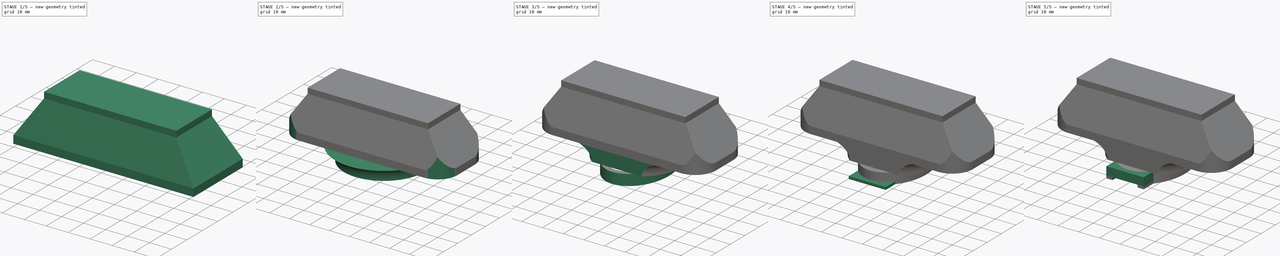
[diagram: build sequence overview — one tinted view per stage of 5, left to right]
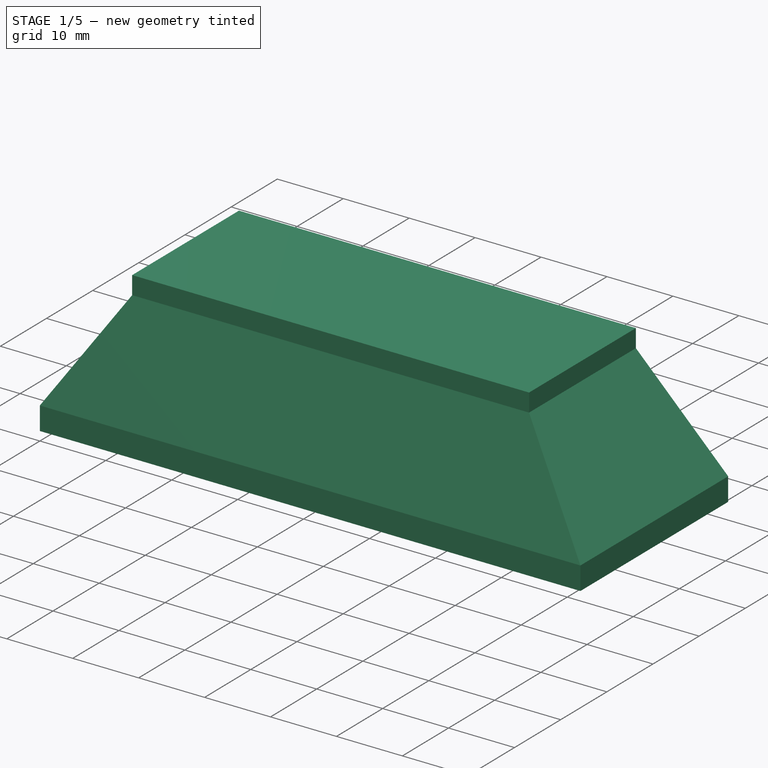
[diagram: stage 1 of 5 — iso view after this stage's code; geometry added in this stage tinted green]
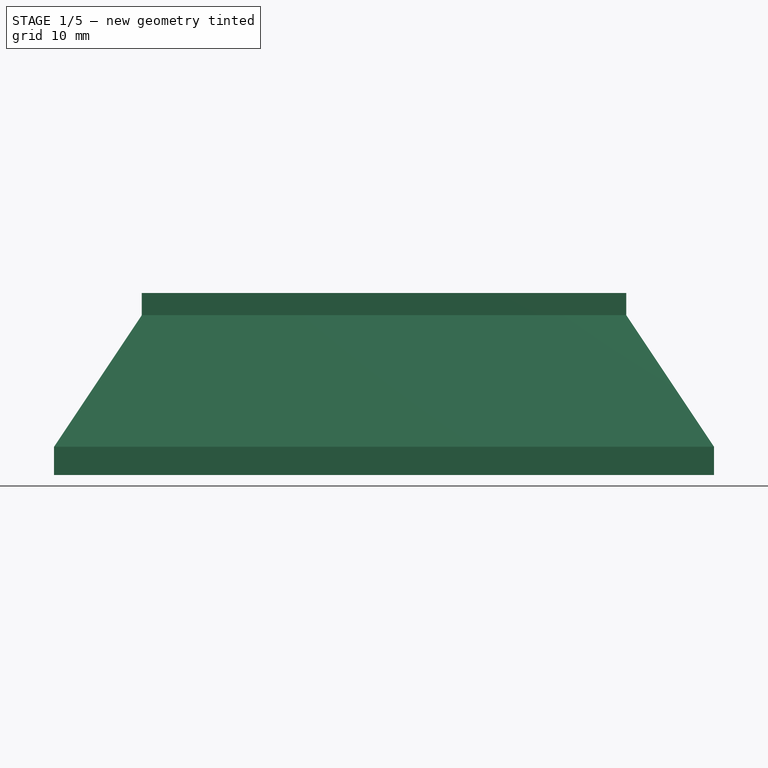
[diagram: stage 1 of 5 — front view after this stage's code; geometry added in this stage tinted green]
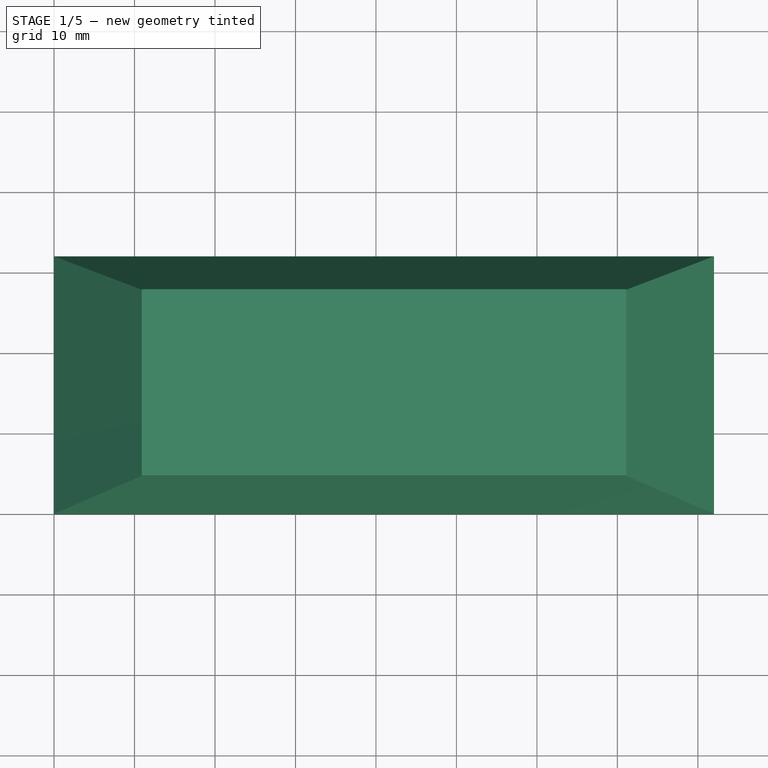
[diagram: stage 1 of 5 — top view after this stage's code; geometry added in this stage tinted green]
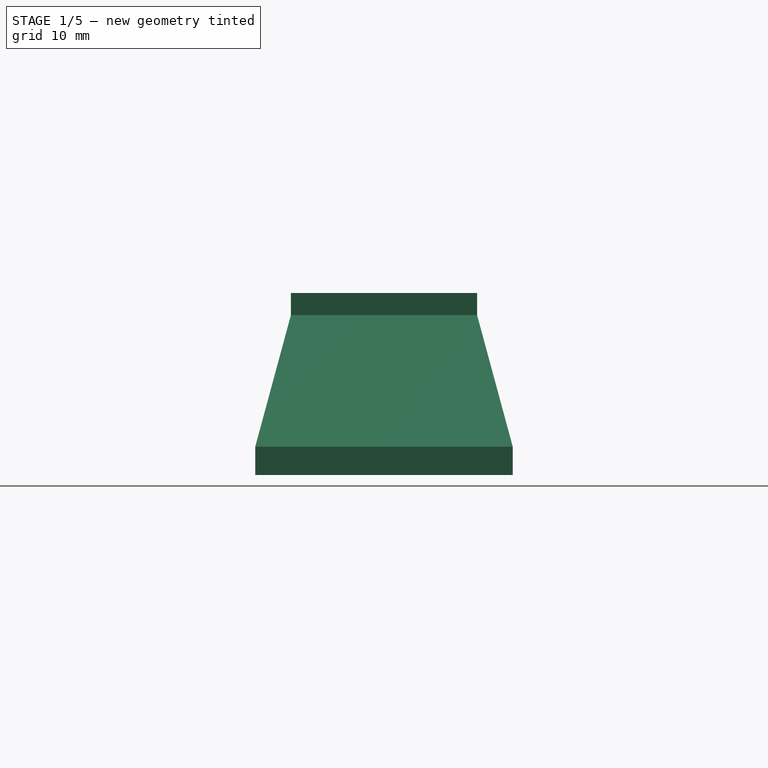
[diagram: stage 1 of 5 — right view after this stage's code; geometry added in this stage tinted green]
FCSTD DOCUMENT  (FreeCAD 0.20R29410 (Git))
Label: Projeto_HS
License: All rights reserved
LicenseURL: http://en.wikipedia.org/wiki/All_rights_reserved
objects: Sketcher::SketchObject×15, PartDesign::Pocket×8, PartDesign::Pad×7, PartDesign::Fillet×1, PartDesign::Revolution×1, PartDesign::Chamfer×1, PartDesign::Body×1
note: 52 computed .brp shape members not serialized (recipe doc carries the construction recipe); baked Part::Feature solids carry a one-line shape summary decoded from their .brp

FEATURE [Sketcher::SketchObject] Sketch
  FullyConstrained = true
  MapMode = 5
  Support = -> [XY_Plane]
  sketch-geometry (4):
    g0: LineSegment StartX=0 StartY=0 StartZ=0 EndX=82 EndY=0 EndZ=0
    g1: LineSegment StartX=82 StartY=0 StartZ=0 EndX=82 EndY=32 EndZ=0
    g2: LineSegment StartX=82 StartY=32 StartZ=0 EndX=0 EndY=32 EndZ=0
    g3: LineSegment StartX=0 StartY=32 StartZ=0 EndX=0 EndY=0 EndZ=0
  constraints (11):
    c: Coincident(g0,g1)
    c: Coincident(g1,g2)
    c: Coincident(g2,g3)
    c: Coincident(g3,g0)
    c: Horizontal(g0)
    c: Horizontal(g2)
    c: Vertical(g1)
    c: Vertical(g3)
    c: Coincident(g0,g-1)
    c: DistanceY(g0,g2) = 32
    c: DistanceX(g2,g1) = 82
FEATURE [PartDesign::Pad] Pad
  Direction = (0,0,1)
  Length = 19.85
  Length2 = 10
  Profile = -> Sketch
  ReferenceAxis = -> Sketch [N_Axis]
  Type = 0
FEATURE [Sketcher::SketchObject] Sketch001
  FullyConstrained = false
  MapMode = 5
  Placement = pos=(0,0,19.85) rot=(0,0,1;0rad)
  Support = -> [Pad]
  sketch-geometry (4):
    g0: LineSegment StartX=10.9045 StartY=4.43 StartZ=0 EndX=71.1045 EndY=4.43 EndZ=0
    g1: LineSegment StartX=71.1045 StartY=4.43 StartZ=0 EndX=71.1045 EndY=27.57 EndZ=0
    g2: LineSegment StartX=71.1045 StartY=27.57 StartZ=0 EndX=10.9045 EndY=27.57 EndZ=0
    g3: LineSegment StartX=10.9045 StartY=27.57 StartZ=0 EndX=10.9045 EndY=4.43 EndZ=0
  constraints (11):
    c: Coincident(g0,g1)
    c: Coincident(g1,g2)
    c: Coincident(g2,g3)
    c: Coincident(g3,g0)
    c: Horizontal(g0)
    c: Horizontal(g2)
    c: Vertical(g1)
    c: Vertical(g3)
    c: DistanceX(g0,g0) = 60.2
    c: DistanceY(g0,g2) = 23.14
    c: Distance(g-1,g0) = 11.77
FEATURE [PartDesign::Pad] Pad001
  BaseFeature = -> Pad
  Direction = (0,0,1)
  Length = 2.75
  Length2 = 10
  Profile = -> Sketch001
  ReferenceAxis = -> Sketch001 [N_Axis]
  Type = 0
FEATURE [Sketcher::SketchObject] Sketch002
  FullyConstrained = false
  MapMode = 5
  Placement = pos=(82,0,0) rot=(0.57735,0.57735,0.57735;2.0944rad)
  Support = -> [Pad001]
  sketch-geometry (6):
    g0: LineSegment StartX=0 StartY=3.5 StartZ=0 EndX=0 EndY=19.85 EndZ=0
    g1: LineSegment StartX=0 StartY=19.85 StartZ=0 EndX=4.43 EndY=19.85 EndZ=0
    g2: LineSegment StartX=4.43 StartY=19.85 StartZ=0 EndX=0 EndY=3.5 EndZ=0
    g3: LineSegment StartX=32 StartY=3.5 StartZ=0 EndX=32 EndY=19.85 EndZ=0
    g4: LineSegment StartX=32 StartY=19.85 StartZ=0 EndX=27.57 EndY=19.85 EndZ=0
    g5: LineSegment StartX=27.57 StartY=19.85 StartZ=0 EndX=32 EndY=3.5 EndZ=0
  constraints (14):
    c: DistanceY(g-1,g2) = 3.5
    c: Vertical(g0)
    c: DistanceY(g2,g0) = 16.35
    c: Coincident(g1,g0)
    c: Horizontal(g1)
    c: DistanceX(g0,g1) = 4.43
    c: Coincident(g2,g1)
    c: Vertical(g3)
    c: DistanceY(g3,g3) = 16.35
    c: Coincident(g4,g3)
    c: Horizontal(g4)
    c: DistanceX(g4,g3) = 4.43
    c: Coincident(g5,g4)
    c: DistanceX(g1,g4) = 23.14
FEATURE [PartDesign::Pocket] Pocket
  BaseFeature = -> Pad001
  Direction = (-1,0,0)
  Length = 5
  Length2 = 5
  Profile = -> Sketch002
  ReferenceAxis = -> Sketch002 [N_Axis]
  Type = 1
FEATURE [Sketcher::SketchObject] Sketch003
  FullyConstrained = false
  MapMode = 5
  Placement = pos=(0,0,0) rot=(1,0,0;1.5708rad)
  Support = -> [XZ_Plane]
  sketch-geometry (6):
    g0: LineSegment StartX=0 StartY=3.5 StartZ=0 EndX=0 EndY=19.85 EndZ=0
    g1: LineSegment StartX=0 StartY=19.85 StartZ=0 EndX=10.9 EndY=19.85 EndZ=0
    g2: LineSegment StartX=10.9 StartY=19.85 StartZ=0 EndX=0 EndY=3.5 EndZ=0
    g3: LineSegment StartX=82 StartY=3.5 StartZ=0 EndX=82 EndY=19.85 EndZ=0
    g4: LineSegment StartX=82 StartY=19.85 StartZ=0 EndX=71.1 EndY=19.85 EndZ=0
    g5: LineSegment StartX=71.1 StartY=19.85 StartZ=0 EndX=82 EndY=3.5 EndZ=0
  constraints (11):
    c: Vertical(g0)
    c: Coincident(g1,g0)
    c: Horizontal(g1)
    c: DistanceX(g0,g1) = 10.9
    c: Coincident(g2,g1)
    c: Vertical(g3)
    c: DistanceY(g3,g3) = 16.35
    c: Coincident(g4,g3)
    c: Horizontal(g4)
    c: DistanceX(g4,g3) = 10.9
    c: Coincident(g5,g4)
FEATURE [PartDesign::Pocket] Pocket001
  BaseFeature = -> Pocket
  Direction = (0,1,-2e-16)
  Length = 5
  Length2 = 5
  Profile = -> Sketch003
  ReferenceAxis = -> Sketch003 [N_Axis]
  Type = 1
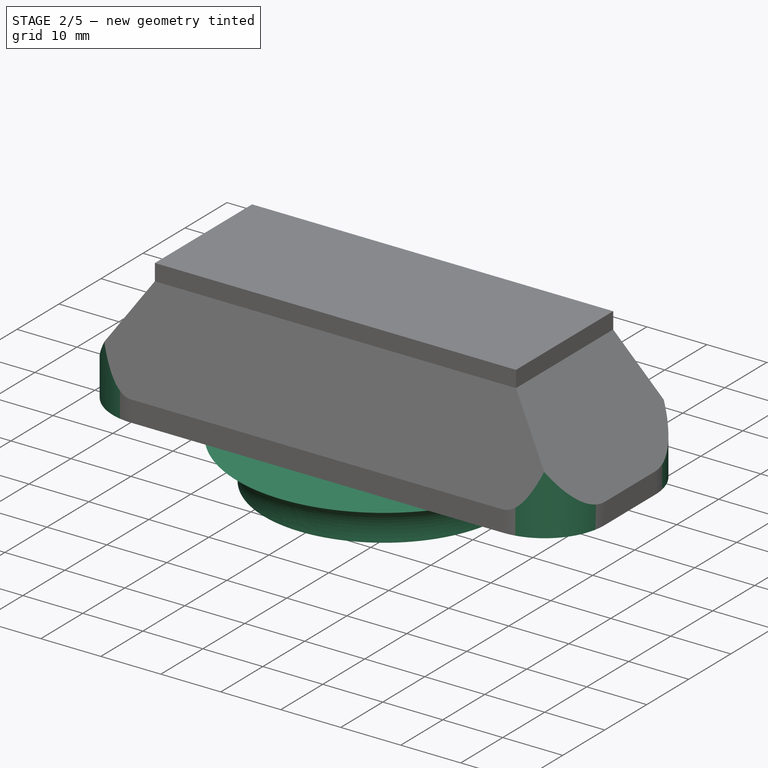
[diagram: stage 2 of 5 — iso view after this stage's code; geometry added in this stage tinted green]
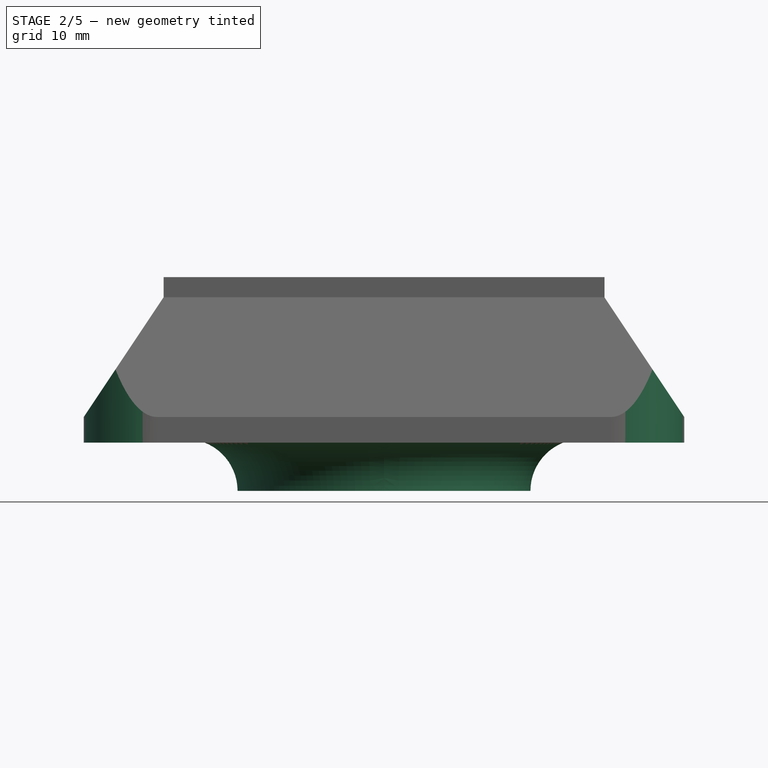
[diagram: stage 2 of 5 — front view after this stage's code; geometry added in this stage tinted green]
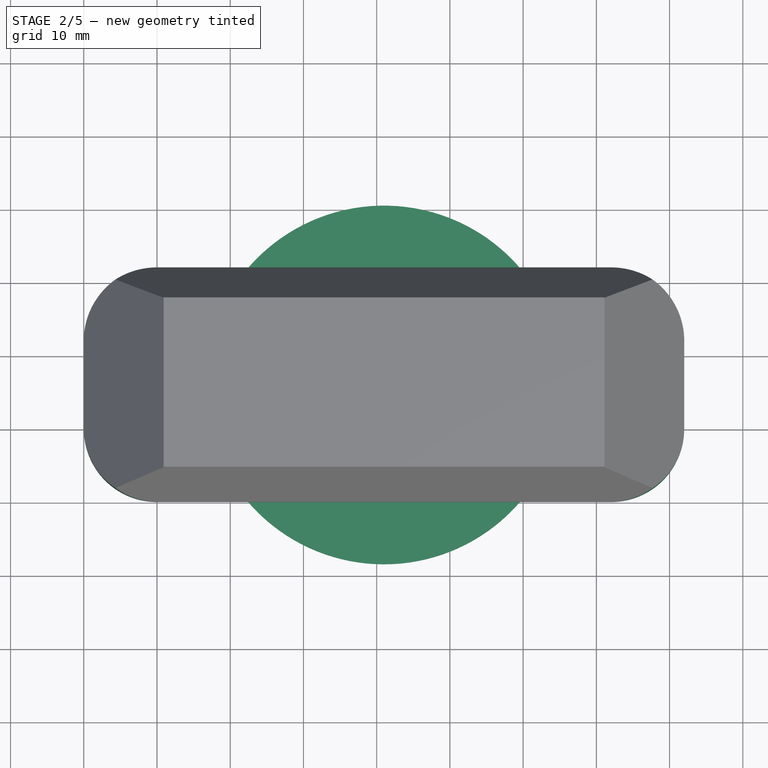
[diagram: stage 2 of 5 — top view after this stage's code; geometry added in this stage tinted green]
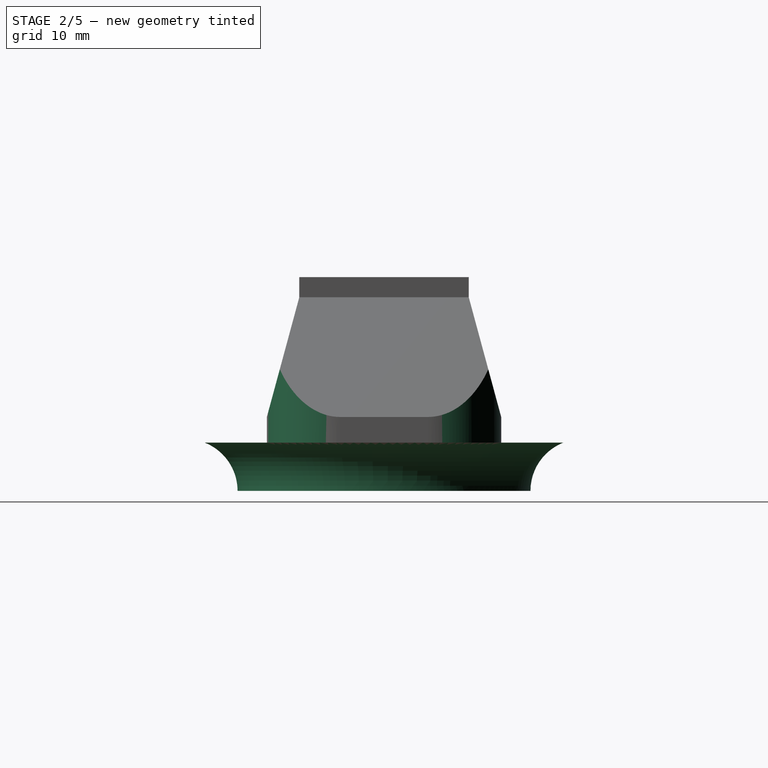
[diagram: stage 2 of 5 — right view after this stage's code; geometry added in this stage tinted green]
FEATURE [PartDesign::Fillet] Fillet
  Base = -> Pocket001 [Edge8,Edge2,Edge4,Edge15]
  BaseFeature = -> Pocket001
  Radius = 10
  SupportTransform = false
  UseAllEdges = false
FEATURE [Sketcher::SketchObject] Sketch006
  FullyConstrained = false
  MapMode = 5
  Placement = pos=(0,0,0) rot=(1,0,0;3.14159rad)
  Support = -> [Fillet]
  sketch-geometry (4):
    g0: LineSegment StartX=41 StartY=-16 StartZ=0 EndX=39.4965 EndY=-16 EndZ=0
    g1: LineSegment StartX=39.4965 StartY=-16 StartZ=0 EndX=39.4965 EndY=-14.4922 EndZ=0
    g2: LineSegment StartX=39.4965 StartY=-14.4922 StartZ=0 EndX=41 EndY=-14.4922 EndZ=0
    g3: LineSegment StartX=41 StartY=-14.4922 StartZ=0 EndX=41 EndY=-16 EndZ=0
  constraints (8):
    c: Coincident(g0,g1)
    c: Coincident(g1,g2)
    c: Coincident(g2,g3)
    c: Coincident(g3,g0)
    c: Horizontal(g0)
    c: Horizontal(g2)
    c: Vertical(g1)
    c: Vertical(g3)
FEATURE [PartDesign::Pad] Pad002
  BaseFeature = -> Fillet
  Direction = (0,0,-1)
  Length = 1
  Length2 = 10
  Profile = -> Sketch006
  ReferenceAxis = -> Sketch006 [N_Axis]
  Type = 0
FEATURE [Sketcher::SketchObject] Sketch007
  FullyConstrained = true
  MapMode = 5
  Placement = pos=(82,0,0) rot=(0.57735,0.57735,0.57735;2.0944rad)
  sketch-geometry (8):
    g0: LineSegment StartX=0 StartY=0 StartZ=0 EndX=-9.4 EndY=0 EndZ=0
    g1: LineSegment StartX=-9.4 StartY=0 StartZ=0 EndX=-9.4 EndY=-8 EndZ=0
    g2: LineSegment StartX=-9.4 StartY=-8 StartZ=0 EndX=0 EndY=-8 EndZ=0
    g3: LineSegment StartX=0 StartY=-8 StartZ=0 EndX=0 EndY=0 EndZ=0
    g4: LineSegment StartX=32 StartY=0 StartZ=0 EndX=41.4 EndY=0 EndZ=0
    g5: LineSegment StartX=41.4 StartY=0 StartZ=0 EndX=41.4 EndY=-8 EndZ=0
    g6: LineSegment StartX=41.4 StartY=-8 StartZ=0 EndX=32 EndY=-8 EndZ=0
    g7: LineSegment StartX=32 StartY=-8 StartZ=0 EndX=32 EndY=0 EndZ=0
  constraints (23):
    c: Coincident(g0,g1)
    c: Coincident(g1,g2)
    c: Coincident(g2,g3)
    c: Coincident(g3,g0)
    c: Horizontal(g0)
    c: Horizontal(g2)
    c: Vertical(g1)
    c: Vertical(g3)
    c: Coincident(g0,g-1)
    c: DistanceX(g0,g0) = 9.4
    c: DistanceY(g1,g0) = 8
    c: Coincident(g4,g5)
    c: Coincident(g5,g6)
    c: Coincident(g6,g7)
    c: Coincident(g7,g4)
    c: Horizontal(g4)
    c: Horizontal(g6)
    c: Vertical(g5)
    c: Vertical(g7)
    c: PointOnObject(g4,g-1)
    c: DistanceX(g4,g4) = 9.4
    c: DistanceX(g0,g4) = 32
    c: DistanceY(g6,g4) = 8
FEATURE [Sketcher::SketchObject] Sketch008
  FullyConstrained = true
  MapMode = 5
  Placement = pos=(41,0,0) rot=(0.57735,0.57735,0.57735;2.0944rad)
  sketch-geometry (4):
    g0: LineSegment StartX=16 StartY=-4.841e-13 StartZ=0 EndX=16 EndY=-6.6 EndZ=0
    g1: LineSegment StartX=16 StartY=-6.6 StartZ=0 EndX=-4 EndY=-6.6 EndZ=0
    g2: ArcOfCircle CenterX=-11.09 CenterY=-6.6 CenterZ=0 NormalX=0 NormalY=0 NormalZ=1 AngleXU=0 Radius=7.09 StartAngle=-1.8e-15 EndAngle=1.19684
    g3: LineSegment StartX=-8.5 StartY=-4.841e-13 StartZ=0 EndX=16 EndY=-4.841e-13 EndZ=0
  constraints (13):
    c: PointOnObject(g0,g-1)
    c: DistanceX(g-1,g0) = 16
    c: Vertical(g0)
    c: DistanceY(g0,g0) = 6.6
    c: Coincident(g1,g0)
    c: Horizontal(g1)
    c: DistanceX(g1,g0) = 20
    c: DistanceX(g2,g0) = 24.5
    c: Coincident(g2,g1)
    c: Horizontal(g2,g1)
    c: Coincident(g3,g2)
    c: Coincident(g3,g0)
    c: Horizontal(g3)
FEATURE [PartDesign::Revolution] Revolution
  Angle = 360
  Axis = (0,0,-1)
  Base = (41,16,0)
  BaseFeature = -> Pad002
  Profile = -> Sketch008
  ReferenceAxis = -> Pad002 [Edge37]
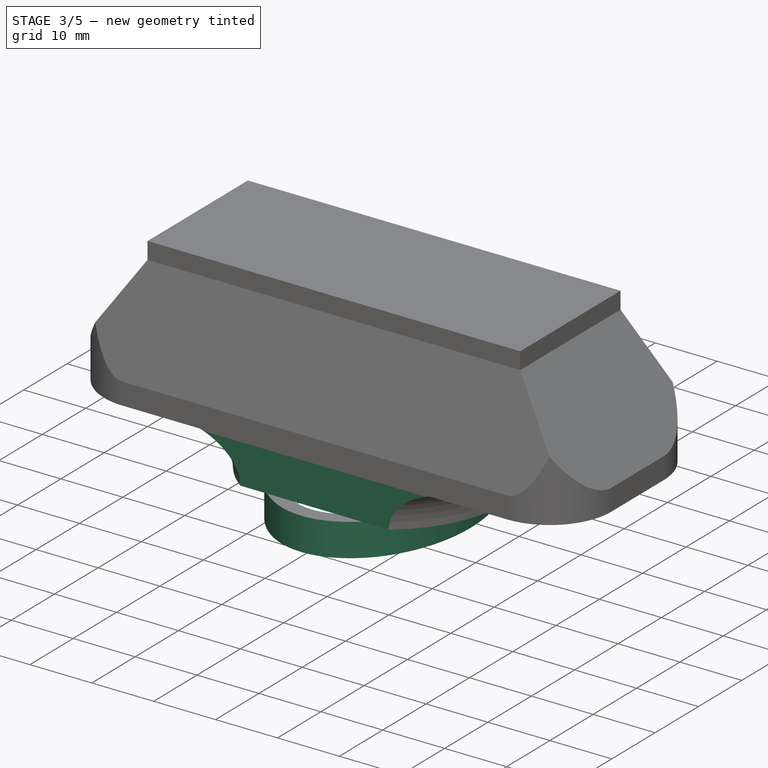
[diagram: stage 3 of 5 — iso view after this stage's code; geometry added in this stage tinted green]
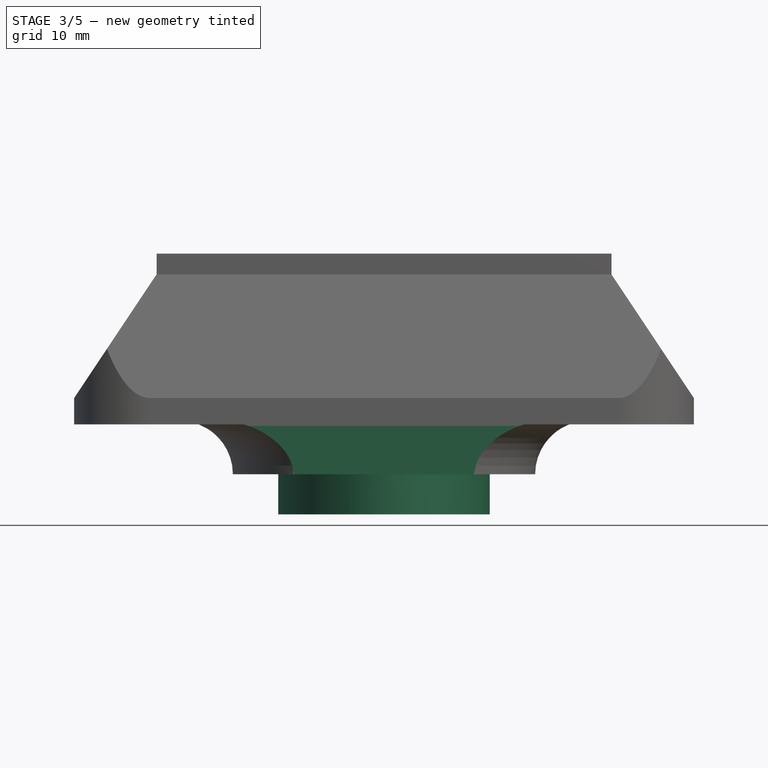
[diagram: stage 3 of 5 — front view after this stage's code; geometry added in this stage tinted green]
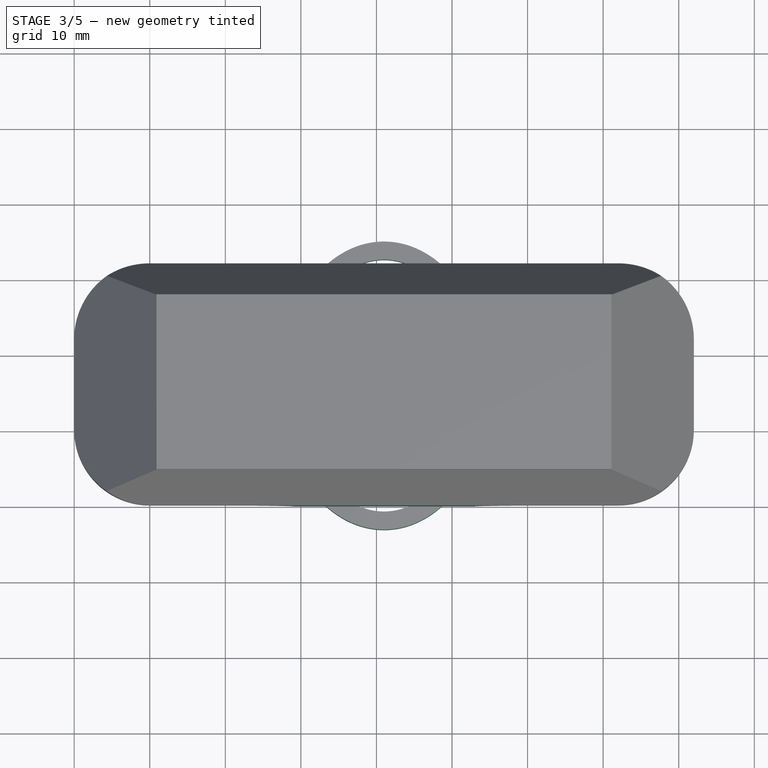
[diagram: stage 3 of 5 — top view after this stage's code; geometry added in this stage tinted green]
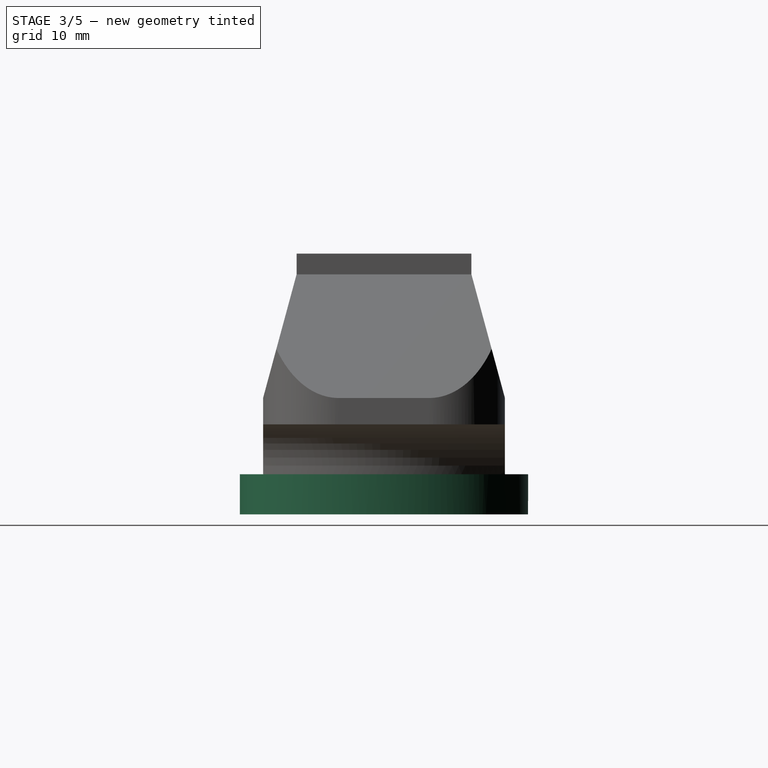
[diagram: stage 3 of 5 — right view after this stage's code; geometry added in this stage tinted green]
FEATURE [PartDesign::Pocket] Pocket002
  BaseFeature = -> Revolution
  Direction = (-1,0,0)
  Length = 5
  Length2 = 5
  Profile = -> Sketch007
  ReferenceAxis = -> Sketch007 [N_Axis]
  Type = 1
FEATURE [Sketcher::SketchObject] Sketch009
  FullyConstrained = true
  MapMode = 5
  Placement = pos=(0,0,-6.6) rot=(1,0,0;3.14159rad)
  Support = -> [Pocket002]
  sketch-geometry (2):
    g0: Circle CenterX=41 CenterY=-16 CenterZ=0 NormalX=0 NormalY=0 NormalZ=1 AngleXU=0 Radius=17.7
    g1: Circle CenterX=41 CenterY=-16 CenterZ=0 NormalX=0 NormalY=0 NormalZ=1 AngleXU=0 Radius=19.9
  constraints (5):
    c: Diameter(g0) = 35.4
    c: DistanceX(g0) = 41
    c: DistanceY(g0) = -16
    c: Coincident(g1,g0)
    c: Diameter(g1) = 39.8
FEATURE [PartDesign::Pocket] Pocket003
  BaseFeature = -> Pocket002
  Direction = (0,0,1)
  Length = 0.01
  Length2 = 5
  Profile = -> Sketch009
  ReferenceAxis = -> Sketch009 [N_Axis]
  Type = 0
FEATURE [Sketcher::SketchObject] Sketch010
  FullyConstrained = true
  MapMode = 5
  Placement = pos=(0,0,-6.6) rot=(1,0,0;3.14159rad)
  Support = -> [Pocket003]
  sketch-geometry (1):
    g0: Circle CenterX=41 CenterY=-16 CenterZ=0 NormalX=0 NormalY=0 NormalZ=1 AngleXU=0 Radius=9.5
  constraints (3):
    c: Diameter(g0) = 19
    c: DistanceX(g0) = 41
    c: DistanceY(g0) = -16
FEATURE [PartDesign::Pocket] Pocket004
  BaseFeature = -> Pocket003
  Direction = (0,0,1)
  Length = 1
  Length2 = 5
  Profile = -> Sketch010
  ReferenceAxis = -> Sketch010 [N_Axis]
  Type = 0
FEATURE [Sketcher::SketchObject] Sketch011
  FullyConstrained = true
  MapMode = 5
  Placement = pos=(0,0,-6.6) rot=(1,0,0;3.14159rad)
  Support = -> [Pocket004]
  sketch-geometry (10):
    g0: Ellipse CenterX=41 CenterY=-16 CenterZ=0 NormalX=0 NormalY=0 NormalZ=1 MajorRadius=19.065 MinorRadius=14 AngleXU=1.5708
    g1: LineSegment StartX=41 StartY=3.065 StartZ=0 EndX=41 EndY=-35.065 EndZ=0
    g2: LineSegment StartX=27 StartY=-16 StartZ=0 EndX=55 EndY=-16 EndZ=0
    g3: GeomPoint X=41 Y=-3.05882 Z=0
    g4: GeomPoint X=41 Y=-28.9412 Z=0
    g5: Ellipse CenterX=41 CenterY=-16 CenterZ=0 NormalX=0 NormalY=0 NormalZ=1 MajorRadius=16.665 MinorRadius=11.6 AngleXU=1.5708
    g6: LineSegment StartX=41 StartY=0.665 StartZ=0 EndX=41 EndY=-32.665 EndZ=0
    g7: LineSegment StartX=29.4 StartY=-16 StartZ=0 EndX=52.6 EndY=-16 EndZ=0
    g8: GeomPoint X=41 Y=-4.03496 Z=0
    g9: GeomPoint X=41 Y=-27.965 Z=0
  constraints (11):
    c: InternalAlignment(g1-g4 -> g0) x4
    c: DistanceX(g0) = 41
    c: DistanceY(g0) = -16
    c: Vertical(g1)
    c: DistanceX(g2,g2) = 28
    c: DistanceY(g1,g1) = 38.13
    c: InternalAlignment(g6-g9 -> g5) x4
    c: Coincident(g0,g5)
    c: Vertical(g6)
    c: DistanceY(g6,g1) = 2.4
    c: DistanceX(g2,g7) = 2.4
FEATURE [PartDesign::Pad] Pad003
  BaseFeature = -> Pocket004
  Direction = (0,0,-1)
  Length = 5.3
  Length2 = 10
  Profile = -> Sketch011
  ReferenceAxis = -> Sketch011 [N_Axis]
  Type = 0
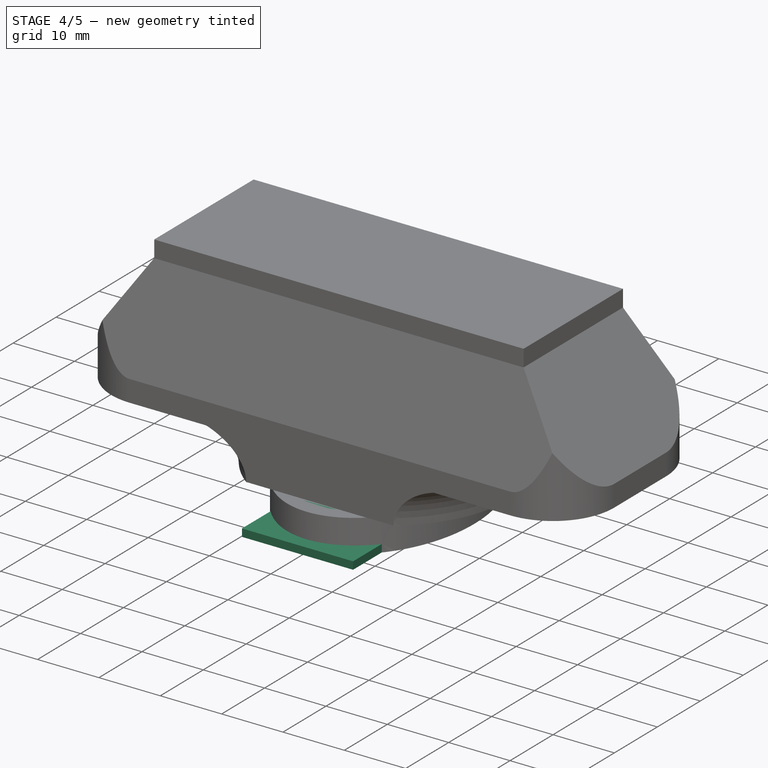
[diagram: stage 4 of 5 — iso view after this stage's code; geometry added in this stage tinted green]
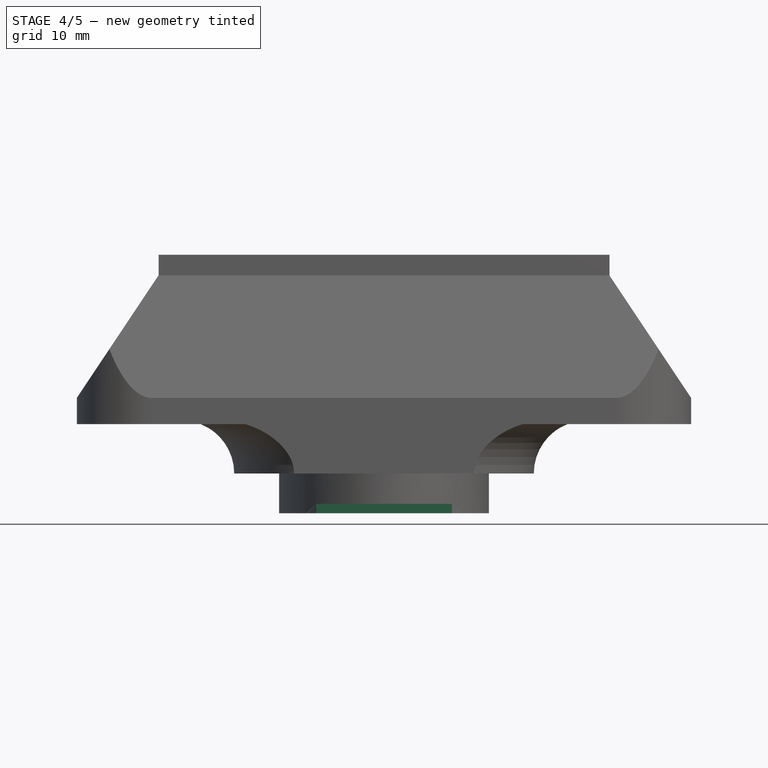
[diagram: stage 4 of 5 — front view after this stage's code; geometry added in this stage tinted green]
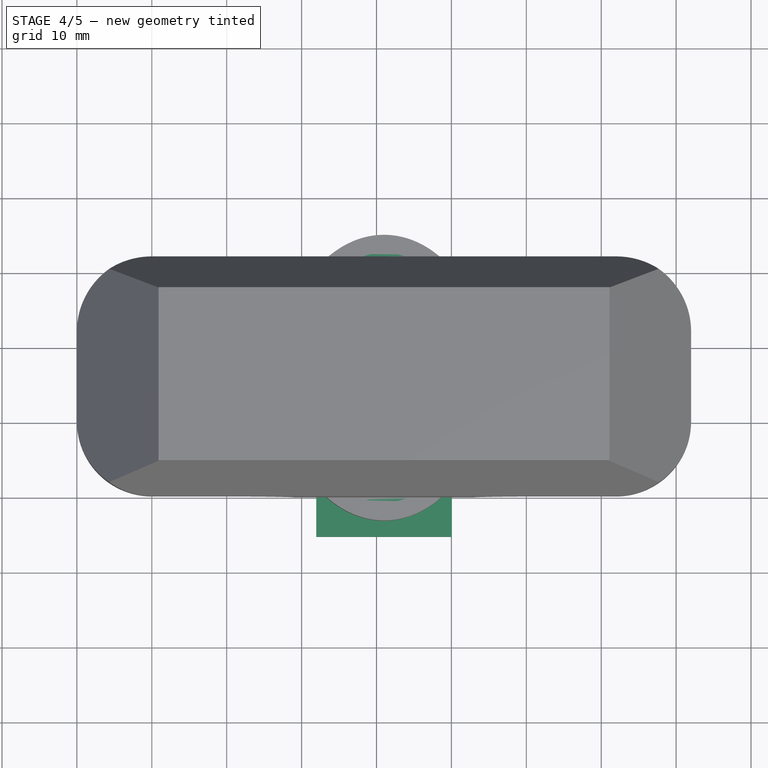
[diagram: stage 4 of 5 — top view after this stage's code; geometry added in this stage tinted green]
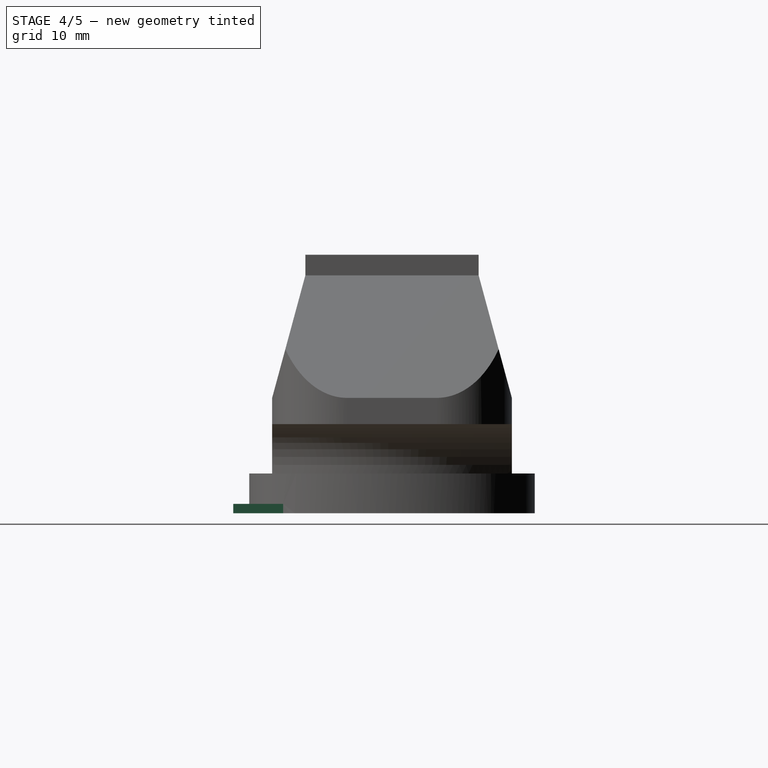
[diagram: stage 4 of 5 — right view after this stage's code; geometry added in this stage tinted green]
FEATURE [Sketcher::SketchObject] Sketch012
  FullyConstrained = true
  MapMode = 5
  Placement = pos=(0,0,-6.6) rot=(1,0,0;3.14159rad)
  Support = -> [Pad003]
  sketch-geometry (6):
    g0: Ellipse CenterX=41 CenterY=-16 CenterZ=0 NormalX=0 NormalY=0 NormalZ=1 MajorRadius=16.67 MinorRadius=11.61 AngleXU=1.5708
    g1: LineSegment StartX=41 StartY=0.67 StartZ=0 EndX=41 EndY=-32.67 EndZ=0
    g2: LineSegment StartX=29.39 StartY=-16 StartZ=0 EndX=52.61 EndY=-16 EndZ=0
    g3: GeomPoint X=41 Y=-4.03769 Z=0
    g4: GeomPoint X=41 Y=-27.9623 Z=0
    g5: Circle CenterX=41 CenterY=-16 CenterZ=0 NormalX=0 NormalY=0 NormalZ=1 AngleXU=0 Radius=9.55
  constraints (8):
    c: InternalAlignment(g1-g4 -> g0) x4
    c: DistanceX(g0) = 41
    c: DistanceY(g0) = -16
    c: Vertical(g1)
    c: DistanceY(g0,g1) = 16.67
    c: DistanceX(g2,g0) = 11.61
    c: Coincident(g5,g0)
    c: Diameter(g5) = 19.1
FEATURE [PartDesign::Pad] Pad004
  BaseFeature = -> Pad003
  Direction = (0,0,-1)
  Length = 4.06
  Length2 = 10
  Profile = -> Sketch012
  ReferenceAxis = -> Sketch012 [N_Axis]
  Type = 0
FEATURE [PartDesign::Chamfer] Chamfer
  Angle = 45
  Base = -> Pad004 [Edge123]
  BaseFeature = -> Pad004
  ChamferType = 0
  FlipDirection = false
  Size = 1.2
  Size2 = 1
  SupportTransform = false
  UseAllEdges = false
FEATURE [Sketcher::SketchObject] Sketch013
  FullyConstrained = true
  MapMode = 5
  Placement = pos=(0,0,-10.66) rot=(1,0,0;3.14159rad)
  Support = -> [Chamfer]
  sketch-geometry (4):
    g0: LineSegment StartX=31.95 StartY=-2 StartZ=0 EndX=50.06 EndY=-2 EndZ=0
    g1: LineSegment StartX=50.06 StartY=-2 StartZ=0 EndX=50.06 EndY=5.2 EndZ=0
    g2: LineSegment StartX=50.06 StartY=5.2 StartZ=0 EndX=31.95 EndY=5.2 EndZ=0
    g3: LineSegment StartX=31.95 StartY=5.2 StartZ=0 EndX=31.95 EndY=-2 EndZ=0
  constraints (12):
    c: Coincident(g0,g1)
    c: Coincident(g1,g2)
    c: Coincident(g2,g3)
    c: Coincident(g3,g0)
    c: Horizontal(g0)
    c: Horizontal(g2)
    c: Vertical(g1)
    c: Vertical(g3)
    c: DistanceX(g0) = 31.95
    c: DistanceY(g0) = -2
    c: DistanceX(g0,g0) = 18.11
    c: DistanceY(g3,g3) = 7.2
FEATURE [PartDesign::Pad] Pad005
  BaseFeature = -> Chamfer
  Direction = (0,0,-1)
  Length = 1.24
  Length2 = 10
  Profile = -> Sketch013
  ReferenceAxis = -> Sketch013 [N_Axis]
  Type = 0
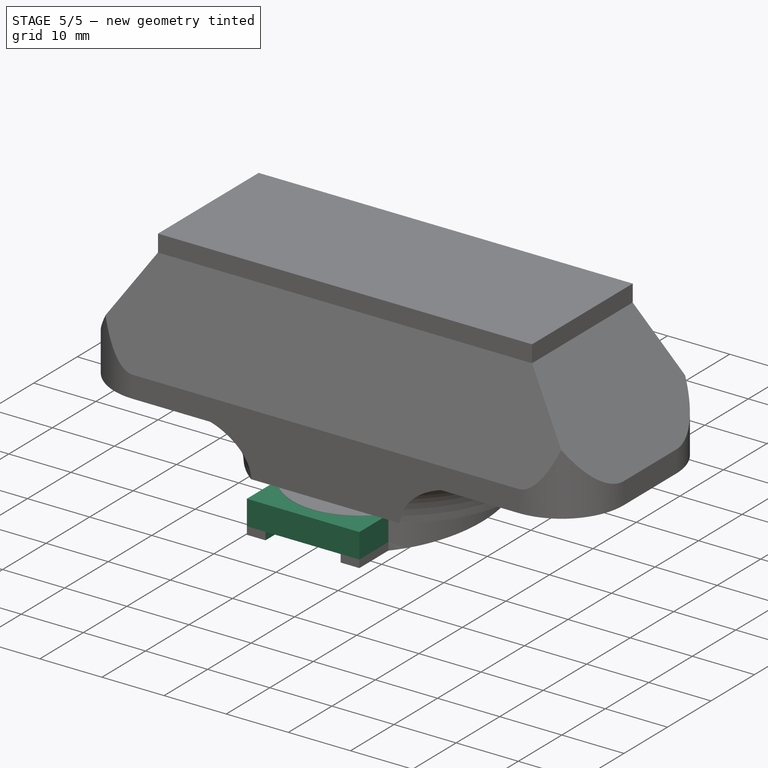
[diagram: stage 5 of 5 — iso view after this stage's code; geometry added in this stage tinted green]
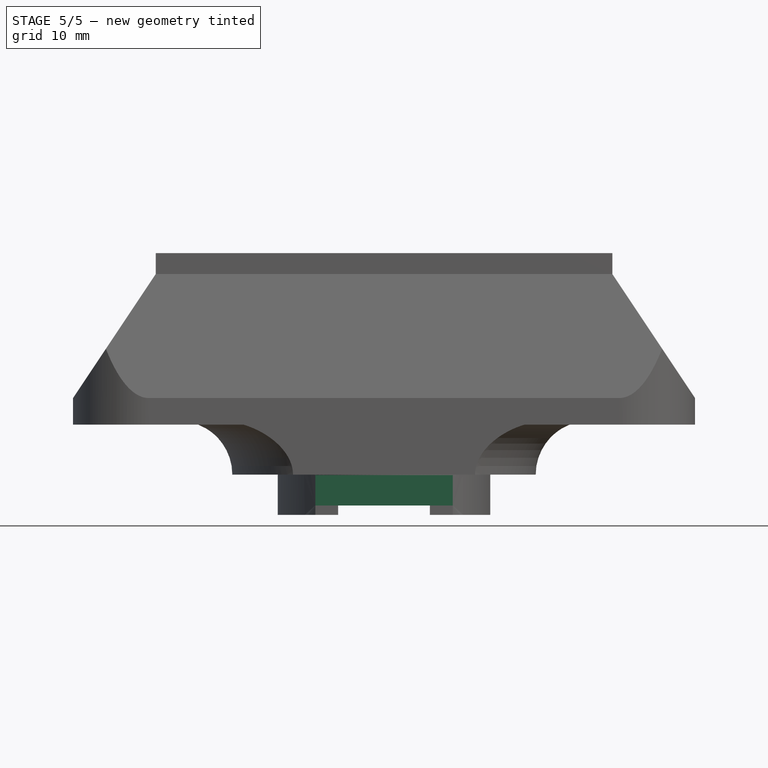
[diagram: stage 5 of 5 — front view after this stage's code; geometry added in this stage tinted green]
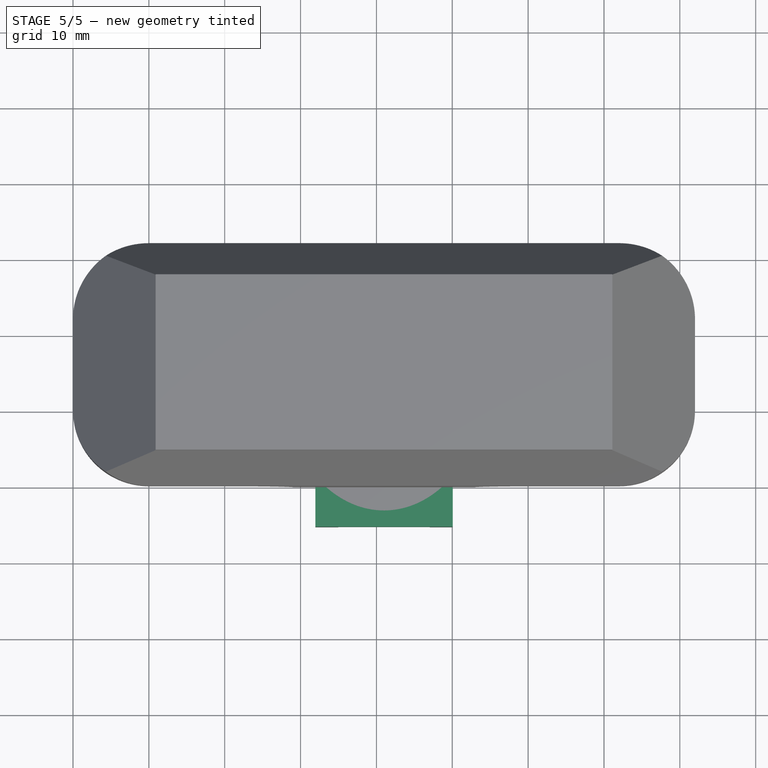
[diagram: stage 5 of 5 — top view after this stage's code; geometry added in this stage tinted green]
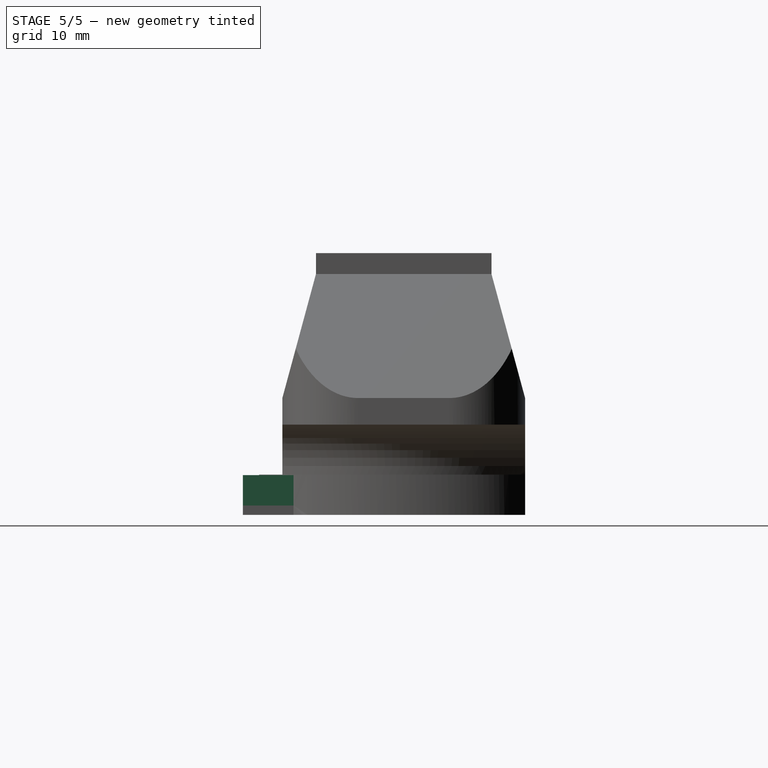
[diagram: stage 5 of 5 — right view after this stage's code; geometry added in this stage tinted green]
FEATURE [PartDesign::Pad] Pad006
  BaseFeature = -> Pad005
  Direction = (0,0,1)
  Length = 4
  Length2 = 10
  Profile = -> Pad005 [Face12]
  Type = 0
FEATURE [Sketcher::SketchObject] Sketch014
  FullyConstrained = true
  MapMode = 5
  Placement = pos=(0,0,-10.66) rot=(1,0,0;3.14159rad)
  Support = -> [Pad006]
  sketch-geometry (4):
    g0: LineSegment StartX=34.95 StartY=9 StartZ=0 EndX=47.05 EndY=9 EndZ=0
    g1: LineSegment StartX=47.05 StartY=9 StartZ=0 EndX=47.05 EndY=-36 EndZ=0
    g2: LineSegment StartX=47.05 StartY=-36 StartZ=0 EndX=34.95 EndY=-36 EndZ=0
    g3: LineSegment StartX=34.95 StartY=-36 StartZ=0 EndX=34.95 EndY=9 EndZ=0
  constraints (12):
    c: Coincident(g0,g1)
    c: Coincident(g1,g2)
    c: Coincident(g2,g3)
    c: Coincident(g3,g0)
    c: Horizontal(g0)
    c: Horizontal(g2)
    c: Vertical(g1)
    c: Vertical(g3)
    c: DistanceX(g2) = 34.95
    c: DistanceY(g2) = -36
    c: DistanceX(g2,g2) = 12.1
    c: DistanceY(g3,g3) = 45
FEATURE [PartDesign::Pocket] Pocket005
  BaseFeature = -> Pad006
  Direction = (0,0,1)
  Length = 5
  Length2 = 5
  Profile = -> Sketch014
  ReferenceAxis = -> Sketch014 [N_Axis]
  Reversed = true
  Type = 0
FEATURE [Sketcher::SketchObject] Sketch015
  FullyConstrained = true
  MapMode = 5
  Placement = pos=(31.95,0,0) rot=(0.57735,-0.57735,-0.57735;2.0944rad)
  Support = -> [Pocket005]
  sketch-geometry (4):
    g0: LineSegment StartX=31 StartY=40 StartZ=0 EndX=51 EndY=40 EndZ=0
    g1: LineSegment StartX=51 StartY=40 StartZ=0 EndX=51 EndY=32 EndZ=0
    g2: LineSegment StartX=51 StartY=32 StartZ=0 EndX=31 EndY=32 EndZ=0
    g3: LineSegment StartX=31 StartY=32 StartZ=0 EndX=31 EndY=40 EndZ=0
  constraints (12):
    c: Coincident(g0,g1)
    c: Coincident(g1,g2)
    c: Coincident(g2,g3)
    c: Coincident(g3,g0)
    c: Horizontal(g0)
    c: Horizontal(g2)
    c: Vertical(g1)
    c: Vertical(g3)
    c: DistanceX(g2,g2) = 20
    c: DistanceY(g3,g3) = 8
    c: DistanceX(g2) = 31
    c: DistanceY(g2) = 32
FEATURE [PartDesign::Pocket] Pocket006
  BaseFeature = -> Pocket005
  Direction = (1,0,0)
  Length = 5
  Length2 = 5
  Profile = -> Sketch015
  ReferenceAxis = -> Sketch015 [N_Axis]
  Type = 1
FEATURE [Sketcher::SketchObject] Sketch018
  FullyConstrained = false
  MapMode = 5
  Placement = pos=(0,0,-6.6) rot=(0,0,1;0rad)
  sketch-geometry (4):
    g0: LineSegment StartX=31.5972 StartY=32 StartZ=0 EndX=50.9395 EndY=32 EndZ=0
    g1: LineSegment StartX=50.9395 StartY=32 StartZ=0 EndX=50.9395 EndY=39.3125 EndZ=0
    g2: LineSegment StartX=50.9395 StartY=39.3125 StartZ=0 EndX=31.5972 EndY=39.3125 EndZ=0
    g3: LineSegment StartX=31.5972 StartY=39.3125 StartZ=0 EndX=31.5972 EndY=32 EndZ=0
  constraints (10):
    c: Coincident(g0,g1)
    c: Coincident(g1,g2)
    c: Coincident(g2,g3)
    c: Coincident(g3,g0)
    c: Horizontal(g0)
    c: Horizontal(g2)
    c: Vertical(g1)
    c: Vertical(g3)
    c: DistanceX(g0) = 31.5972
    c: DistanceY(g0) = 32
FEATURE [PartDesign::Pocket] Pocket007
  BaseFeature = -> Pocket006
  Direction = (0,0,-1)
  Length = 5
  Length2 = 5
  Profile = -> Sketch018
  ReferenceAxis = -> Sketch018 [N_Axis]
  Type = 1
FEATURE [PartDesign::Body] Body
  Group = -> [Sketch,Pad,Sketch001,Pad001,Sketch002,Pocket,Sketch003,Pocket001,Fillet,Sketch006,Pad002,Sketch007,Sketch008,Revolution,Pocket002,Sketch009,Pocket003,Sketch010,Pocket004,Sketch011,Pad003,Sketch012,Pad004,Chamfer,Sketch013,Pad005,Pad006,Sketch014,Pocket005,Sketch015,Pocket006,Sketch018,Pocket007]
  Origin = -> Origin
  Tip = -> Pocket007
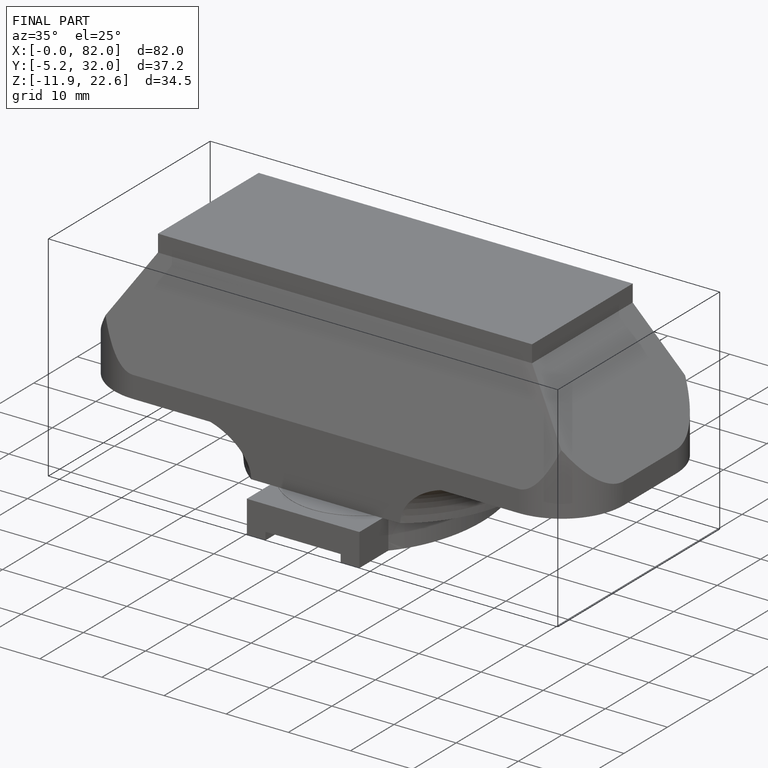
[diagram: finished part — iso view with bounding-box wireframe]
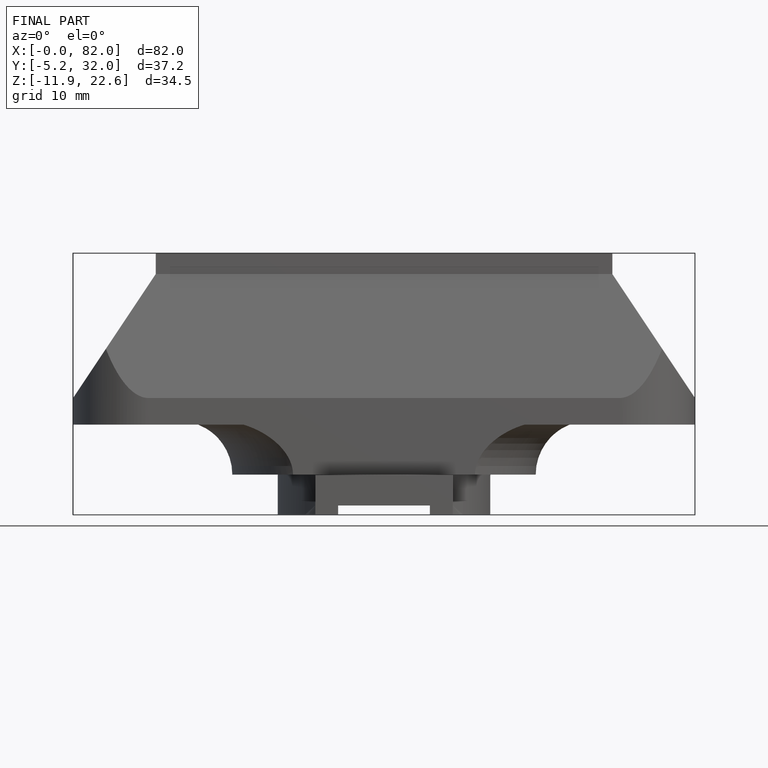
[diagram: finished part — front view with bounding-box wireframe]
